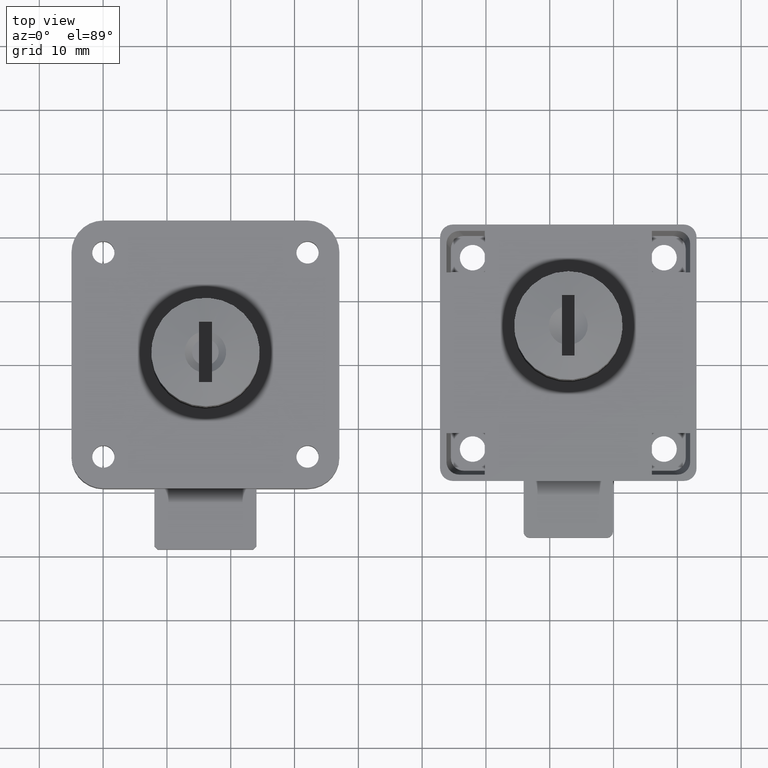
[diagram: clean part render]
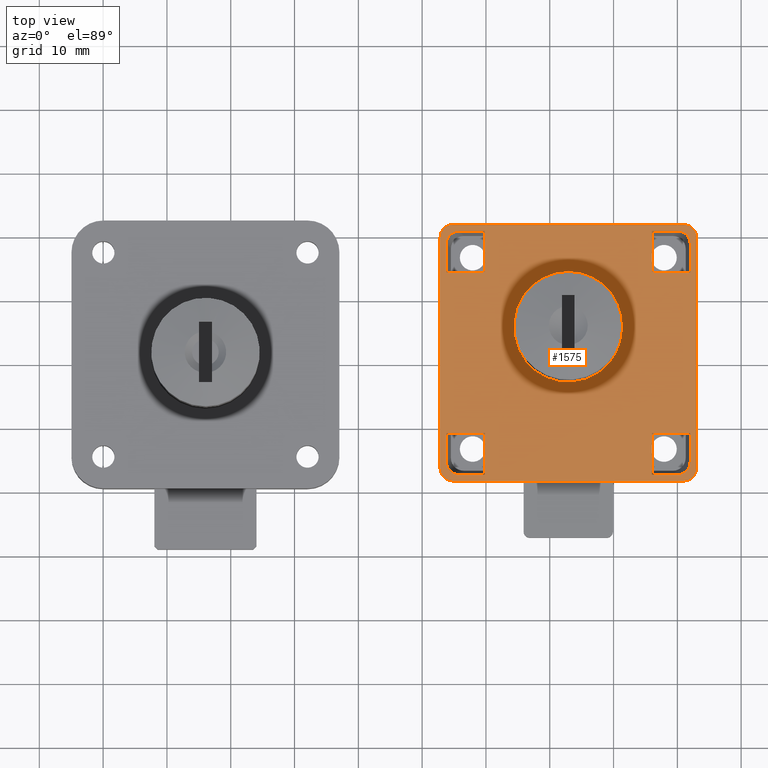
[diagram: same view with one face highlighted and labeled with its STEP entity id]
A machine part, top view. The second image highlights one B-rep face of the part: STEP entity #1575.
In plain terms, the highlighted planar face has unit normal (0, 0, 1).
Its self-contained STEP definition (entity closure, byte-faithful):
#19=ELLIPSE('',#1717,2.01144566973043,2.);
#21=ELLIPSE('',#1720,2.01144566973043,2.);
#22=ELLIPSE('',#1721,2.01144566973043,2.);
#23=ELLIPSE('',#1722,2.01144566973044,2.);
#88=FACE_BOUND('',#302,.T.);
#89=FACE_BOUND('',#303,.T.);
#90=FACE_BOUND('',#304,.T.);
#91=FACE_BOUND('',#305,.T.);
#92=FACE_BOUND('',#306,.T.);
#183=FACE_OUTER_BOUND('',#301,.T.);
#301=EDGE_LOOP('',(#1333,#1334,#1335,#1336,#1337,#1338,#1339,#1340));
#302=EDGE_LOOP('',(#1341,#1342,#1343,#1344,#1345));
#303=EDGE_LOOP('',(#1346,#1347,#1348,#1349,#1350));
#304=EDGE_LOOP('',(#1351,#1352,#1353,#1354,#1355));
#305=EDGE_LOOP('',(#1356,#1357,#1358,#1359,#1360));
#306=EDGE_LOOP('',(#1361));
#397=LINE('',#2512,#531);
#401=LINE('',#2526,#535);
#403=LINE('',#2530,#537);
#405=LINE('',#2533,#539);
#410=LINE('',#2548,#544);
#414=LINE('',#2562,#548);
#416=LINE('',#2566,#550);
#418=LINE('',#2569,#552);
#423=LINE('',#2584,#557);
#427=LINE('',#2598,#561);
#429=LINE('',#2602,#563);
#431=LINE('',#2605,#565);
#436=LINE('',#2620,#570);
#440=LINE('',#2634,#574);
#442=LINE('',#2638,#576);
#444=LINE('',#2641,#578);
#447=LINE('',#2653,#581);
#448=LINE('',#2657,#582);
#449=LINE('',#2661,#583);
#450=LINE('',#2664,#584);
#531=VECTOR('',#2010,4.5);
#535=VECTOR('',#2018,4.);
#537=VECTOR('',#2022,6.5);
#539=VECTOR('',#2026,6.);
#544=VECTOR('',#2037,4.5);
#548=VECTOR('',#2045,4.);
#550=VECTOR('',#2049,6.5);
#552=VECTOR('',#2053,6.);
#557=VECTOR('',#2064,4.5);
#561=VECTOR('',#2072,4.);
#563=VECTOR('',#2076,6.5);
#565=VECTOR('',#2080,6.);
#570=VECTOR('',#2091,4.5);
#574=VECTOR('',#2099,4.);
#576=VECTOR('',#2103,6.5);
#578=VECTOR('',#2107,6.);
#581=VECTOR('',#2118,36.2114292478882);
#582=VECTOR('',#2121,36.2114292478882);
#583=VECTOR('',#2124,36.2114292478882);
#584=VECTOR('',#2127,36.2114292478882);
#648=CIRCLE('',#1691,2.);
#650=CIRCLE('',#1698,2.);
#652=CIRCLE('',#1705,2.);
#654=CIRCLE('',#1712,2.);
#655=CIRCLE('',#1723,8.5);
#750=VERTEX_POINT('',#2510);
#751=VERTEX_POINT('',#2511);
#752=VERTEX_POINT('',#2521);
#753=VERTEX_POINT('',#2525);
#754=VERTEX_POINT('',#2529);
#760=VERTEX_POINT('',#2546);
#761=VERTEX_POINT('',#2547);
#762=VERTEX_POINT('',#2557);
#763=VERTEX_POINT('',#2561);
#764=VERTEX_POINT('',#2565);
#770=VERTEX_POINT('',#2582);
#771=VERTEX_POINT('',#2583);
#772=VERTEX_POINT('',#2593);
#773=VERTEX_POINT('',#2597);
#774=VERTEX_POINT('',#2601);
#780=VERTEX_POINT('',#2618);
#781=VERTEX_POINT('',#2619);
#782=VERTEX_POINT('',#2629);
#783=VERTEX_POINT('',#2633);
#784=VERTEX_POINT('',#2637);
#785=VERTEX_POINT('',#2643);
#786=VERTEX_POINT('',#2644);
#789=VERTEX_POINT('',#2652);
#790=VERTEX_POINT('',#2654);
#791=VERTEX_POINT('',#2656);
#792=VERTEX_POINT('',#2658);
#793=VERTEX_POINT('',#2660);
#794=VERTEX_POINT('',#2662);
#795=VERTEX_POINT('',#2665);
#926=EDGE_CURVE('',#750,#751,#397,.T.);
#929=EDGE_CURVE('',#752,#750,#648,.T.);
#931=EDGE_CURVE('',#753,#752,#401,.T.);
#933=EDGE_CURVE('',#754,#753,#403,.T.);
#935=EDGE_CURVE('',#751,#754,#405,.T.);
#941=EDGE_CURVE('',#760,#761,#410,.T.);
#944=EDGE_CURVE('',#761,#762,#650,.T.);
#946=EDGE_CURVE('',#762,#763,#414,.T.);
#948=EDGE_CURVE('',#763,#764,#416,.T.);
#950=EDGE_CURVE('',#764,#760,#418,.T.);
#956=EDGE_CURVE('',#770,#771,#423,.T.);
#959=EDGE_CURVE('',#771,#772,#652,.T.);
#961=EDGE_CURVE('',#772,#773,#427,.T.);
#963=EDGE_CURVE('',#773,#774,#429,.T.);
#965=EDGE_CURVE('',#774,#770,#431,.T.);
#971=EDGE_CURVE('',#780,#781,#436,.T.);
#974=EDGE_CURVE('',#782,#780,#654,.T.);
#976=EDGE_CURVE('',#783,#782,#440,.T.);
#978=EDGE_CURVE('',#784,#783,#442,.T.);
#980=EDGE_CURVE('',#781,#784,#444,.T.);
#981=EDGE_CURVE('',#785,#786,#19,.T.);
#985=EDGE_CURVE('',#785,#789,#447,.T.);
#986=EDGE_CURVE('',#790,#789,#21,.T.);
#987=EDGE_CURVE('',#790,#791,#448,.T.);
#988=EDGE_CURVE('',#792,#791,#22,.T.);
#989=EDGE_CURVE('',#792,#793,#449,.T.);
#990=EDGE_CURVE('',#794,#793,#23,.T.);
#991=EDGE_CURVE('',#794,#786,#450,.T.);
#992=EDGE_CURVE('',#795,#795,#655,.T.);
#1333=ORIENTED_EDGE('',*,*,#981,.F.);
#1334=ORIENTED_EDGE('',*,*,#985,.T.);
#1335=ORIENTED_EDGE('',*,*,#986,.F.);
#1336=ORIENTED_EDGE('',*,*,#987,.T.);
#1337=ORIENTED_EDGE('',*,*,#988,.F.);
#1338=ORIENTED_EDGE('',*,*,#989,.T.);
#1339=ORIENTED_EDGE('',*,*,#990,.F.);
#1340=ORIENTED_EDGE('',*,*,#991,.T.);
#1341=ORIENTED_EDGE('',*,*,#926,.T.);
#1342=ORIENTED_EDGE('',*,*,#935,.T.);
#1343=ORIENTED_EDGE('',*,*,#933,.T.);
#1344=ORIENTED_EDGE('',*,*,#931,.T.);
#1345=ORIENTED_EDGE('',*,*,#929,.T.);
#1346=ORIENTED_EDGE('',*,*,#941,.T.);
#1347=ORIENTED_EDGE('',*,*,#944,.T.);
#1348=ORIENTED_EDGE('',*,*,#946,.T.);
#1349=ORIENTED_EDGE('',*,*,#948,.T.);
#1350=ORIENTED_EDGE('',*,*,#950,.T.);
#1351=ORIENTED_EDGE('',*,*,#956,.T.);
#1352=ORIENTED_EDGE('',*,*,#959,.T.);
#1353=ORIENTED_EDGE('',*,*,#961,.T.);
#1354=ORIENTED_EDGE('',*,*,#963,.T.);
#1355=ORIENTED_EDGE('',*,*,#965,.T.);
#1356=ORIENTED_EDGE('',*,*,#971,.T.);
#1357=ORIENTED_EDGE('',*,*,#980,.T.);
#1358=ORIENTED_EDGE('',*,*,#978,.T.);
#1359=ORIENTED_EDGE('',*,*,#976,.T.);
#1360=ORIENTED_EDGE('',*,*,#974,.T.);
#1361=ORIENTED_EDGE('',*,*,#992,.T.);
#1491=PLANE('',#1719);
#1575=ADVANCED_FACE('',(#183,#88,#89,#90,#91,#92),#1491,.T.);
#1691=AXIS2_PLACEMENT_3D('',#2522,#2013,#2014);
#1698=AXIS2_PLACEMENT_3D('',#2558,#2040,#2041);
#1705=AXIS2_PLACEMENT_3D('',#2594,#2067,#2068);
#1712=AXIS2_PLACEMENT_3D('',#2630,#2094,#2095);
#1717=AXIS2_PLACEMENT_3D('',#2645,#2110,#2111);
#1719=AXIS2_PLACEMENT_3D('',#2651,#2116,#2117);
#1720=AXIS2_PLACEMENT_3D('',#2655,#2119,#2120);
#1721=AXIS2_PLACEMENT_3D('',#2659,#2122,#2123);
#1722=AXIS2_PLACEMENT_3D('',#2663,#2125,#2126);
#1723=AXIS2_PLACEMENT_3D('',#2666,#2128,#2129);
#2010=DIRECTION('',(1.69617406539954E-16,-1.,0.));
#2013=DIRECTION('center_axis',(0.,0.,-1.));
#2014=DIRECTION('ref_axis',(0.707106781186548,-0.707106781186547,0.));
#2018=DIRECTION('',(1.,-2.66810160007693E-16,0.));
#2022=DIRECTION('',(-5.12410626750072E-16,1.,0.));
#2026=DIRECTION('',(-1.,4.08595805317168E-16,0.));
#2037=DIRECTION('',(1.69617406539954E-16,1.,0.));
#2040=DIRECTION('center_axis',(0.,0.,-1.));
#2041=DIRECTION('ref_axis',(-0.707106781186548,-0.707106781186547,0.));
#2045=DIRECTION('',(1.,2.66810160007693E-16,0.));
#2049=DIRECTION('',(-5.12410626750072E-16,-1.,0.));
#2053=DIRECTION('',(-1.,-4.08595805317168E-16,0.));
#2064=DIRECTION('',(-1.69617406539954E-16,-1.,0.));
#2067=DIRECTION('center_axis',(0.,0.,-1.));
#2068=DIRECTION('ref_axis',(0.707106781186548,0.707106781186547,0.));
#2072=DIRECTION('',(-1.,-2.66810160007693E-16,0.));
#2076=DIRECTION('',(5.12410626750072E-16,1.,0.));
#2080=DIRECTION('',(1.,4.08595805317168E-16,0.));
#2091=DIRECTION('',(-1.69617406539954E-16,1.,0.));
#2094=DIRECTION('center_axis',(0.,0.,-1.));
#2095=DIRECTION('ref_axis',(-0.707106781186548,0.707106781186547,0.));
#2099=DIRECTION('',(-1.,2.66810160007693E-16,0.));
#2103=DIRECTION('',(5.12410626750072E-16,-1.,0.));
#2107=DIRECTION('',(1.,-4.08595805317168E-16,0.));
#2110=DIRECTION('center_axis',(0.,0.,-1.));
#2111=DIRECTION('ref_axis',(-0.707106781186547,0.707106781186548,0.));
#2116=DIRECTION('center_axis',(0.,0.,1.));
#2117=DIRECTION('ref_axis',(1.,0.,0.));
#2118=DIRECTION('',(2.2784427744173E-16,-1.,0.));
#2119=DIRECTION('center_axis',(0.,0.,-1.));
#2120=DIRECTION('ref_axis',(-0.707106781186548,-0.707106781186547,0.));
#2121=DIRECTION('',(1.,1.05291673666254E-16,0.));
#2122=DIRECTION('center_axis',(0.,0.,-1.));
#2123=DIRECTION('ref_axis',(0.707106781186546,-0.707106781186549,0.));
#2124=DIRECTION('',(1.10469952699021E-16,1.,0.));
#2125=DIRECTION('center_axis',(0.,0.,-1.));
#2126=DIRECTION('ref_axis',(0.707106781186547,0.707106781186547,0.));
#2127=DIRECTION('',(-1.,0.,0.));
#2128=DIRECTION('center_axis',(0.,0.,-1.));
#2129=DIRECTION('ref_axis',(-1.,-1.05291673666254E-16,0.));
#2510=CARTESIAN_POINT('',(38.7,36.7,6.6));
#2511=CARTESIAN_POINT('',(38.7,32.2,6.6));
#2512=CARTESIAN_POINT('',(38.7,25.9,6.6));
#2521=CARTESIAN_POINT('',(36.7,38.7,6.6));
#2522=CARTESIAN_POINT('Origin',(36.7,36.7,6.6));
#2525=CARTESIAN_POINT('',(32.7,38.7,6.6));
#2526=CARTESIAN_POINT('',(28.15,38.7,6.6));
#2529=CARTESIAN_POINT('',(32.7,32.2,6.6));
#2530=CARTESIAN_POINT('',(32.7,29.15,6.6));
#2533=CARTESIAN_POINT('',(26.15,32.2,6.6));
#2546=CARTESIAN_POINT('',(0.499999999999997,32.2,6.6));
#2547=CARTESIAN_POINT('',(0.499999999999998,36.7,6.6));
#2548=CARTESIAN_POINT('',(0.499999999999999,25.9,6.6));
#2557=CARTESIAN_POINT('',(2.5,38.7,6.6));
#2558=CARTESIAN_POINT('Origin',(2.5,36.7,6.6));
#2561=CARTESIAN_POINT('',(6.5,38.7,6.6));
#2562=CARTESIAN_POINT('',(11.05,38.7,6.6));
#2565=CARTESIAN_POINT('',(6.5,32.2,6.6));
#2566=CARTESIAN_POINT('',(6.5,29.15,6.6));
#2569=CARTESIAN_POINT('',(13.05,32.2,6.6));
#2582=CARTESIAN_POINT('',(38.7,7.,6.6));
#2583=CARTESIAN_POINT('',(38.7,2.5,6.6));
#2584=CARTESIAN_POINT('',(38.7,13.3,6.6));
#2593=CARTESIAN_POINT('',(36.7,0.499999999999998,6.6));
#2594=CARTESIAN_POINT('Origin',(36.7,2.5,6.6));
#2597=CARTESIAN_POINT('',(32.7,0.499999999999999,6.6));
#2598=CARTESIAN_POINT('',(28.15,0.499999999999995,6.6));
#2601=CARTESIAN_POINT('',(32.7,7.,6.6));
#2602=CARTESIAN_POINT('',(32.7,10.05,6.6));
#2605=CARTESIAN_POINT('',(26.15,7.,6.6));
#2618=CARTESIAN_POINT('',(0.499999999999998,2.5,6.6));
#2619=CARTESIAN_POINT('',(0.499999999999997,7.,6.6));
#2620=CARTESIAN_POINT('',(0.499999999999999,13.3,6.6));
#2629=CARTESIAN_POINT('',(2.5,0.499999999999998,6.6));
#2630=CARTESIAN_POINT('Origin',(2.5,2.5,6.6));
#2633=CARTESIAN_POINT('',(6.5,0.499999999999999,6.6));
#2634=CARTESIAN_POINT('',(11.05,0.499999999999995,6.6));
#2637=CARTESIAN_POINT('',(6.5,7.,6.6));
#2638=CARTESIAN_POINT('',(6.5,10.05,6.6));
#2641=CARTESIAN_POINT('',(13.05,7.,6.6));
#2643=CARTESIAN_POINT('',(-0.500000000000009,37.7057146239441,6.6));
#2644=CARTESIAN_POINT('',(1.49428537605589,39.7,6.6));
#2645=CARTESIAN_POINT('Origin',(1.50573099919671,37.6942690008033,6.6));
#2651=CARTESIAN_POINT('Origin',(19.6,19.6,6.6));
#2652=CARTESIAN_POINT('',(-0.500000000000001,1.49428537605589,6.6));
#2653=CARTESIAN_POINT('',(-0.5,-0.500000000000002,6.6));
#2654=CARTESIAN_POINT('',(1.4942853760559,-0.500000000000002,6.6));
#2655=CARTESIAN_POINT('Origin',(1.50573099919671,1.50573099919671,6.6));
#2656=CARTESIAN_POINT('',(37.7057146239441,-0.499999999999998,6.6));
#2657=CARTESIAN_POINT('',(39.7,-0.499999999999998,6.6));
#2658=CARTESIAN_POINT('',(39.7,1.4942853760559,6.6));
#2659=CARTESIAN_POINT('Origin',(37.6942690008033,1.50573099919672,6.6));
#2660=CARTESIAN_POINT('',(39.7,37.7057146239441,6.6));
#2661=CARTESIAN_POINT('',(39.7,39.7,6.6));
#2662=CARTESIAN_POINT('',(37.7057146239441,39.7,6.6));
#2663=CARTESIAN_POINT('Origin',(37.6942690008033,37.6942690008033,6.6));
#2664=CARTESIAN_POINT('',(-0.50000000000001,39.7,6.6));
#2665=CARTESIAN_POINT('',(28.1,23.5,6.6));
#2666=CARTESIAN_POINT('Origin',(19.6,23.5,6.6));